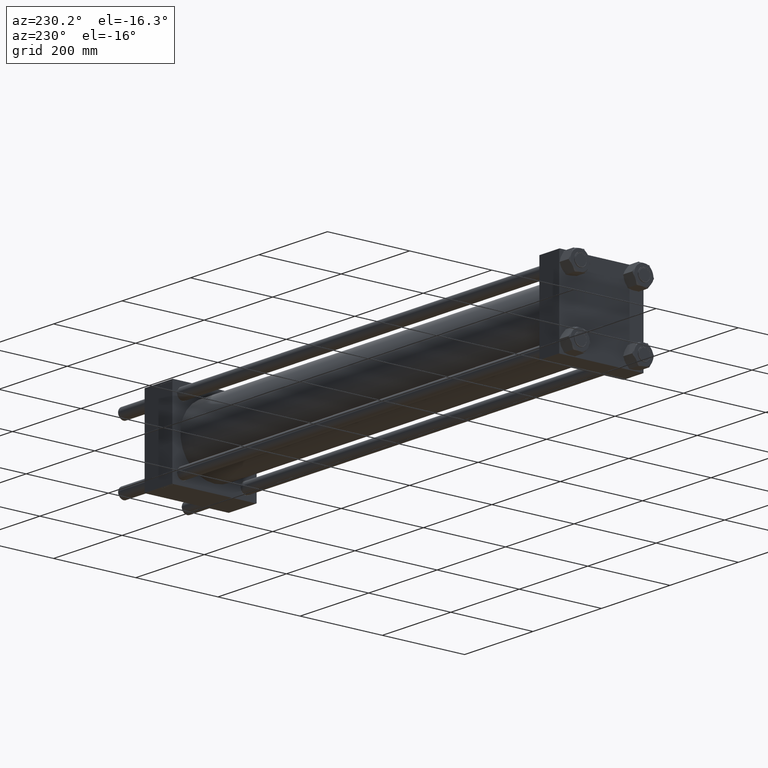
[diagram: clean part render]
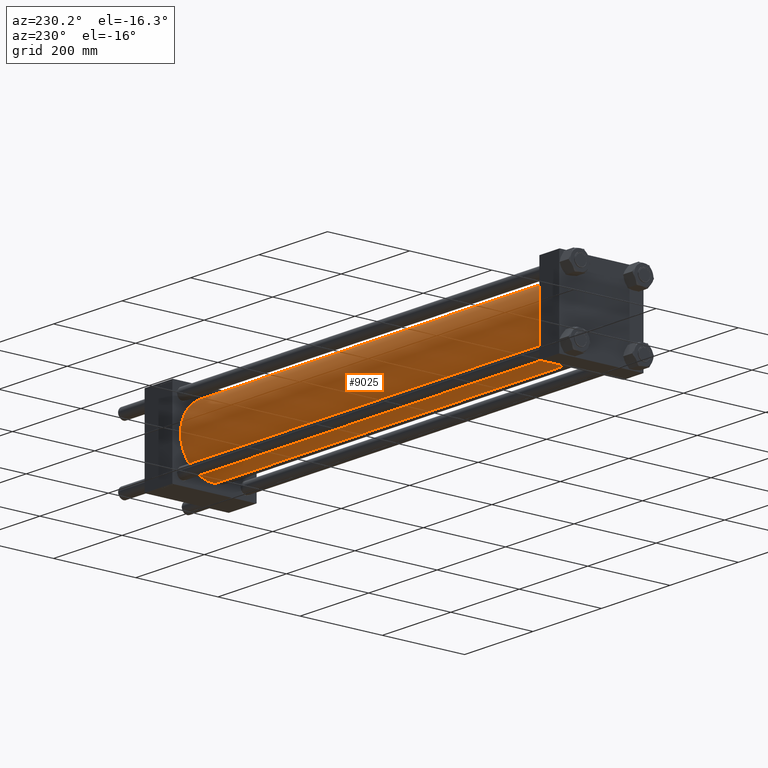
[diagram: same view with one face highlighted and labeled with its STEP entity id]
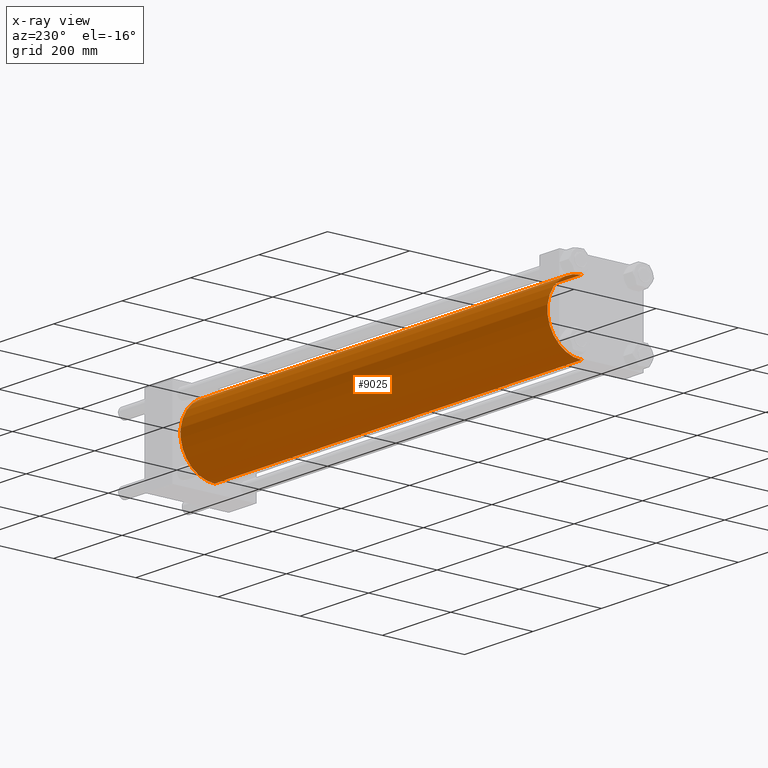
[diagram: x-ray of the same camera — body ghosted, the highlighted face saturated]
A machine part, auxiliary view. The second image highlights one B-rep face of the part: STEP entity #9025.
The next image is the same camera in x-ray: the body ghosted, the highlighted face saturated — about 0% of this face is hidden behind the body in this view.
In plain terms, the highlighted cylindrical surface (partial cylindrical patch) has radius 83 mm, axis along (-1, -0, -0).
Its self-contained STEP definition (entity closure, byte-faithful):
#649 = CARTESIAN_POINT ( 'NONE',  ( 1130.000000000000227, -2.602085213965210642E-15, 83.00000000000000000 ) ) ;
#5778 = DIRECTION ( 'NONE',  ( 0.000000000000000000, 0.000000000000000000, 1.000000000000000000 ) ) ;
#9025 = ADVANCED_FACE ( 'NONE', ( #42363 ), #29053, .T. ) ;
#11940 = VECTOR ( 'NONE', #14148, 1000.000000000000000 ) ;
#13594 = DIRECTION ( 'NONE',  ( 1.000000000000000000, -0.000000000000000000, -0.000000000000000000 ) ) ;
#14148 = DIRECTION ( 'NONE',  ( -1.000000000000000000, -0.000000000000000000, -0.000000000000000000 ) ) ;
#16008 = DIRECTION ( 'NONE',  ( 0.000000000000000000, 0.000000000000000000, 1.000000000000000000 ) ) ;
#16967 = DIRECTION ( 'NONE',  ( 1.000000000000000000, 0.000000000000000000, 0.000000000000000000 ) ) ;
#17072 = LINE ( 'NONE', #30409, #11940 ) ;
#19034 = CIRCLE ( 'NONE', #23624, 83.00000000000000000 ) ;
#19350 = VERTEX_POINT ( 'NONE', #21415 ) ;
#20204 = AXIS2_PLACEMENT_3D ( 'NONE', #51453, #16967, #39248 ) ;
#20235 = VERTEX_POINT ( 'NONE', #25928 ) ;
#20369 = CARTESIAN_POINT ( 'NONE',  ( 1130.000000000000227, -2.602085213965210642E-15, 0.000000000000000000 ) ) ;
#21415 = CARTESIAN_POINT ( 'NONE',  ( 58.00000000000004974, -2.602085213965210642E-15, 83.00000000000000000 ) ) ;
#22578 = ORIENTED_EDGE ( 'NONE', *, *, #53874, .T. ) ;
#23624 = AXIS2_PLACEMENT_3D ( 'NONE', #23713, #13594, #5778 ) ;
#23713 = CARTESIAN_POINT ( 'NONE',  ( 58.00000000000004974, -2.602085213965210642E-15, 0.000000000000000000 ) ) ;
#25291 = DIRECTION ( 'NONE',  ( -1.000000000000000000, -0.000000000000000000, -0.000000000000000000 ) ) ;
#25928 = CARTESIAN_POINT ( 'NONE',  ( 1130.000000000000227, 7.562483218957820855E-15, -83.00000000000000000 ) ) ;
#29053 = CYLINDRICAL_SURFACE ( 'NONE', #41275, 83.00000000000000000 ) ;
#30409 = CARTESIAN_POINT ( 'NONE',  ( 1130.000000000000227, 7.562483218957820855E-15, -83.00000000000000000 ) ) ;
#32506 = ORIENTED_EDGE ( 'NONE', *, *, #48019, .F. ) ;
#35936 = ORIENTED_EDGE ( 'NONE', *, *, #39214, .T. ) ;
#35980 = EDGE_CURVE ( 'NONE', #36575, #19350, #51201, .T. ) ;
#36575 = VERTEX_POINT ( 'NONE', #649 ) ;
#39214 = EDGE_CURVE ( 'NONE', #55993, #19350, #19034, .T. ) ;
#39248 = DIRECTION ( 'NONE',  ( 0.000000000000000000, 0.000000000000000000, -1.000000000000000000 ) ) ;
#41063 = VECTOR ( 'NONE', #42513, 1000.000000000000000 ) ;
#41275 = AXIS2_PLACEMENT_3D ( 'NONE', #20369, #25291, #16008 ) ;
#41371 = CARTESIAN_POINT ( 'NONE',  ( 1130.000000000000227, -2.602085213965210642E-15, 83.00000000000000000 ) ) ;
#42363 = FACE_OUTER_BOUND ( 'NONE', #56638, .T. ) ;
#42513 = DIRECTION ( 'NONE',  ( -1.000000000000000000, -0.000000000000000000, -0.000000000000000000 ) ) ;
#47173 = ORIENTED_EDGE ( 'NONE', *, *, #35980, .F. ) ;
#48019 = EDGE_CURVE ( 'NONE', #20235, #36575, #48862, .T. ) ;
#48862 = CIRCLE ( 'NONE', #20204, 83.00000000000000000 ) ;
#51201 = LINE ( 'NONE', #41371, #41063 ) ;
#51453 = CARTESIAN_POINT ( 'NONE',  ( 1130.000000000000227, -2.602085213965210642E-15, 0.000000000000000000 ) ) ;
#52001 = CARTESIAN_POINT ( 'NONE',  ( 58.00000000000004974, 7.562483218957820855E-15, -83.00000000000000000 ) ) ;
#53874 = EDGE_CURVE ( 'NONE', #20235, #55993, #17072, .T. ) ;
#55993 = VERTEX_POINT ( 'NONE', #52001 ) ;
#56638 = EDGE_LOOP ( 'NONE', ( #32506, #22578, #35936, #47173 ) ) ;